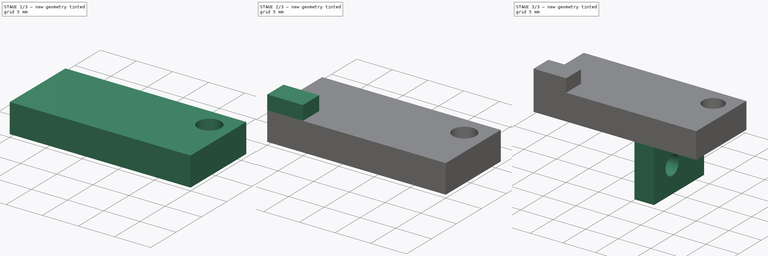
[diagram: build sequence overview — one tinted view per stage of 3, left to right]
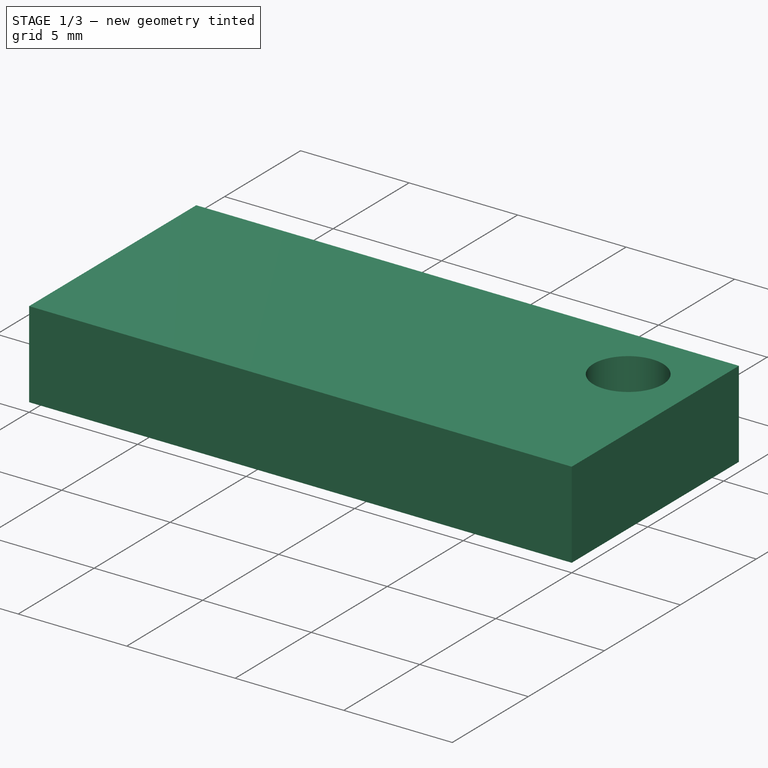
[diagram: stage 1 of 3 — iso view after this stage's code; geometry added in this stage tinted green]
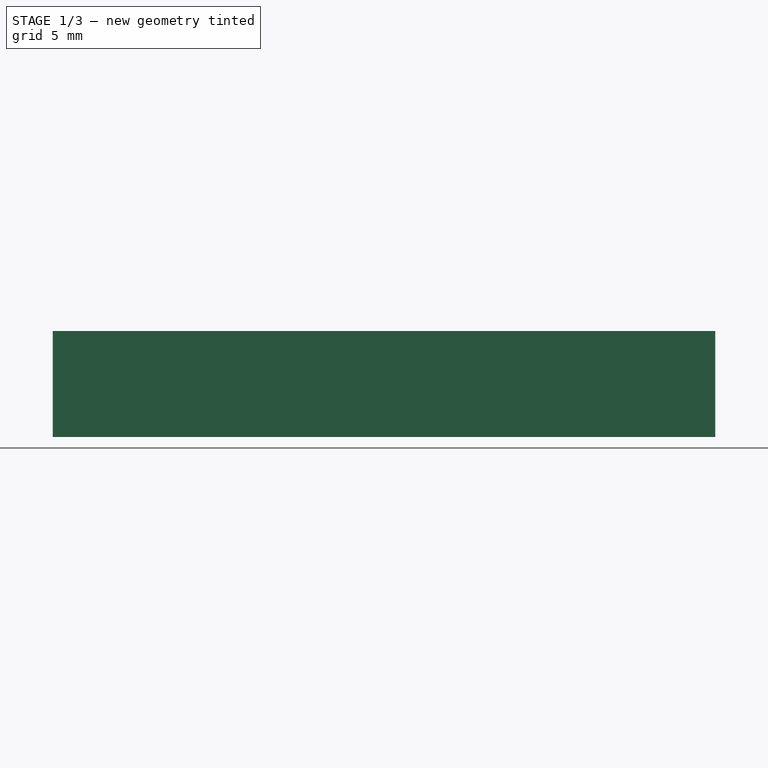
[diagram: stage 1 of 3 — front view after this stage's code; geometry added in this stage tinted green]
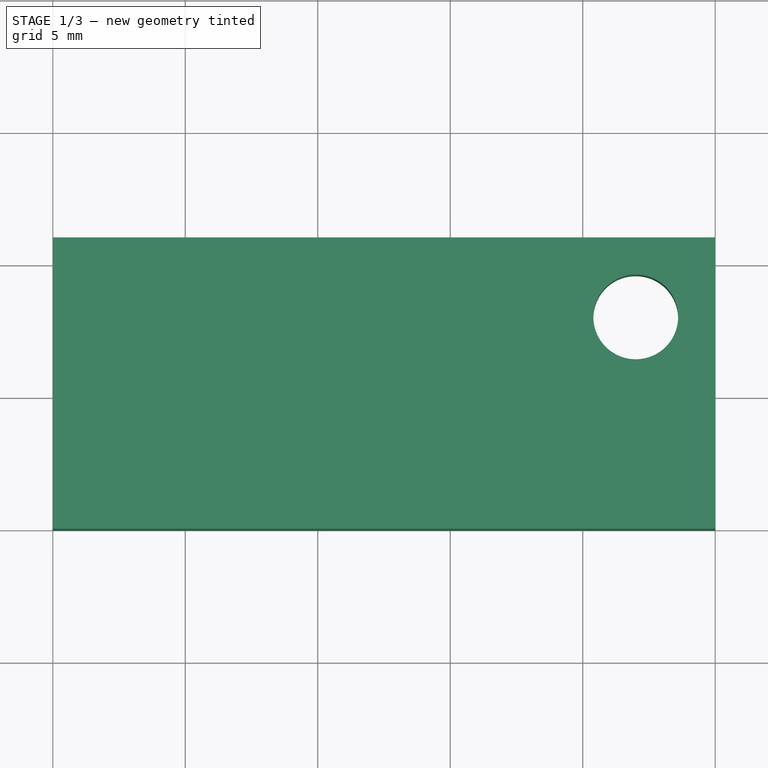
[diagram: stage 1 of 3 — top view after this stage's code; geometry added in this stage tinted green]
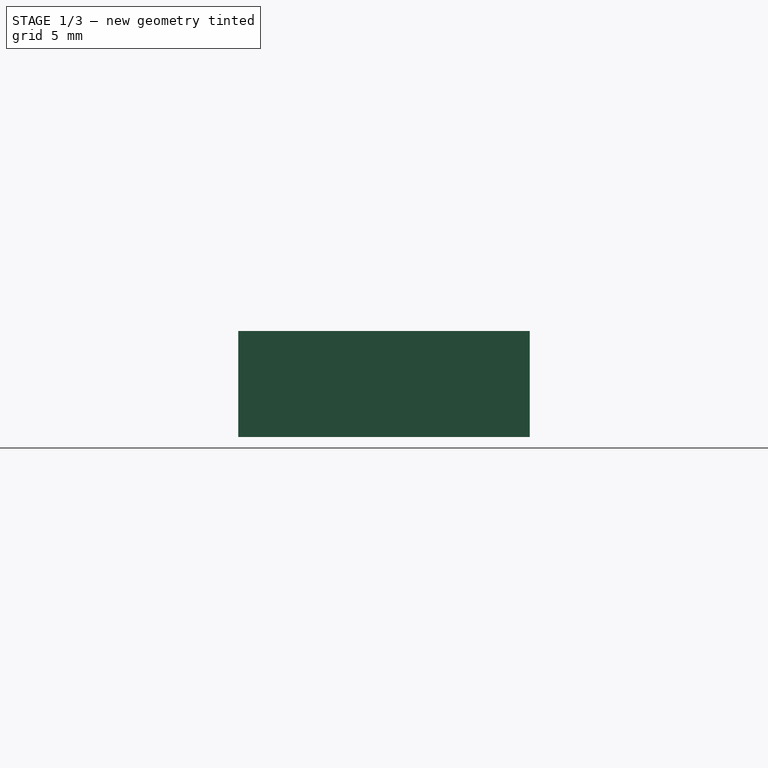
[diagram: stage 1 of 3 — right view after this stage's code; geometry added in this stage tinted green]
FCSTD DOCUMENT  (FreeCAD 0.18R14090 (Git))
Label: ZEndStopClip3
License: All rights reserved
LicenseURL: http://en.wikipedia.org/wiki/All_rights_reserved
objects: Sketcher::SketchObject×5, PartDesign::Pad×3, PartDesign::Pocket×2, PartDesign::Plane×1, PartDesign::Body×1, App::Part×1
note: 17 computed .brp shape members not serialized (recipe doc carries the construction recipe); baked Part::Feature solids carry a one-line shape summary decoded from their .brp

FEATURE [Sketcher::SketchObject] Sketch  label="BaseSketch"
  MapMode = 5
  Support = -> [XY_Plane001]
  sketch-geometry (7):
    g0: LineSegment StartX=0 StartY=0 StartZ=0 EndX=25 EndY=0 EndZ=0
    g1: LineSegment StartX=25 StartY=0 StartZ=0 EndX=25 EndY=11 EndZ=0
    g2: LineSegment StartX=25 StartY=11 StartZ=0 EndX=0 EndY=11 EndZ=0
    g3: LineSegment StartX=0 StartY=11 StartZ=0 EndX=0 EndY=0 EndZ=0
    g4: Circle CenterX=22 CenterY=8 CenterZ=0 NormalX=0 NormalY=0 NormalZ=1 AngleXU=0 Radius=1.6
    g5: LineSegment [constr] StartX=22 StartY=8 StartZ=0 EndX=22 EndY=0 EndZ=0
    g6: LineSegment [constr] StartX=22 StartY=8 StartZ=0 EndX=25 EndY=8 EndZ=0
  constraints (20):
    c: Coincident(g0,g1)
    c: Coincident(g1,g2)
    c: Coincident(g2,g3)
    c: Coincident(g3,g0)
    c: Horizontal(g0)
    c: Horizontal(g2)
    c: Vertical(g1)
    c: Vertical(g3)
    c: Coincident(g0,g-1)
    c: Distance(g3) = 11
    c: Distance(g0) = 25
    c: Coincident(g5,g4)
    c: PointOnObject(g5,g0)
    c: Vertical(g5)
    c: Radius(g4) = 1.6
    c: Coincident(g6,g4)
    c: PointOnObject(g6,g1)
    c: Horizontal(g6)
    c: Distance(g6) = 3
    c: Distance(g5) = 8
FEATURE [PartDesign::Pad] Pad  label="BasePad"
  Length = 4
  Length2 = 100
  Profile = -> Sketch
  Type = 0
FEATURE [Sketcher::SketchObject] Sketch001  label="RailSketch"
  ExternalGeometry = -> [Sketch]
  MapMode = 5
  Placement = pos=(0,0,0) rot=(0.57735,0.57735,0.57735;2.0944rad)
  Support = -> [YZ_Plane001]
  sketch-geometry (10):
    g0: LineSegment StartX=1 StartY=3 StartZ=0 EndX=7 EndY=3 EndZ=0
    g1: LineSegment StartX=1 StartY=3 StartZ=0 EndX=1 EndY=1.5 EndZ=0
    g2: LineSegment StartX=7 StartY=3 StartZ=0 EndX=7 EndY=1.5 EndZ=0
    g3: LineSegment StartX=1 StartY=1.5 StartZ=0 EndX=2 EndY=1.5 EndZ=0
    g4: LineSegment StartX=7 StartY=1.5 StartZ=0 EndX=6 EndY=1.5 EndZ=0
    g5: LineSegment StartX=2 StartY=1.5 StartZ=0 EndX=2 EndY=0 EndZ=0
    g6: LineSegment StartX=2 StartY=0 StartZ=0 EndX=6 EndY=0 EndZ=0
    g7: LineSegment StartX=6 StartY=0 StartZ=0 EndX=6 EndY=1.5 EndZ=0
    g8: LineSegment [constr] StartX=2 StartY=0 StartZ=0 EndX=0 EndY=0 EndZ=0
    g9: LineSegment [constr] StartX=6 StartY=0 StartZ=0 EndX=11 EndY=1e-12 EndZ=0
  constraints (28):
    c: Horizontal(g0)
    c: Coincident(g1,g0)
    c: Vertical(g1)
    c: Coincident(g2,g0)
    c: Vertical(g2)
    c: Coincident(g3,g1)
    c: Horizontal(g3)
    c: Coincident(g4,g2)
    c: Horizontal(g4)
    c: Coincident(g5,g3)
    c: PointOnObject(g5,g-1)
    c: Vertical(g5)
    c: Coincident(g6,g5)
    c: PointOnObject(g6,g-1)
    c: Coincident(g7,g6)
    c: Coincident(g7,g4)
    c: Vertical(g7)
    c: Equal(g7,g5)
    c: Equal(g4,g3)
    c: Coincident(g8,g5)
    c: Coincident(g8,g-1)
    c: Coincident(g9,g6)
    c: Coincident(g9,g-3)
    c: Distance(g6) = 4
    c: Distance(g5) = 1.5
    c: Distance(g1) = 1.5
    c: Distance(g4) = 1
    c: Distance(g8) = 2
FEATURE [PartDesign::Pocket] Pocket  label="RailPocket"
  BaseFeature = -> Pad
  Length = 18
  Length2 = 100
  Profile = -> Sketch001
  Reversed = true
  Type = 0
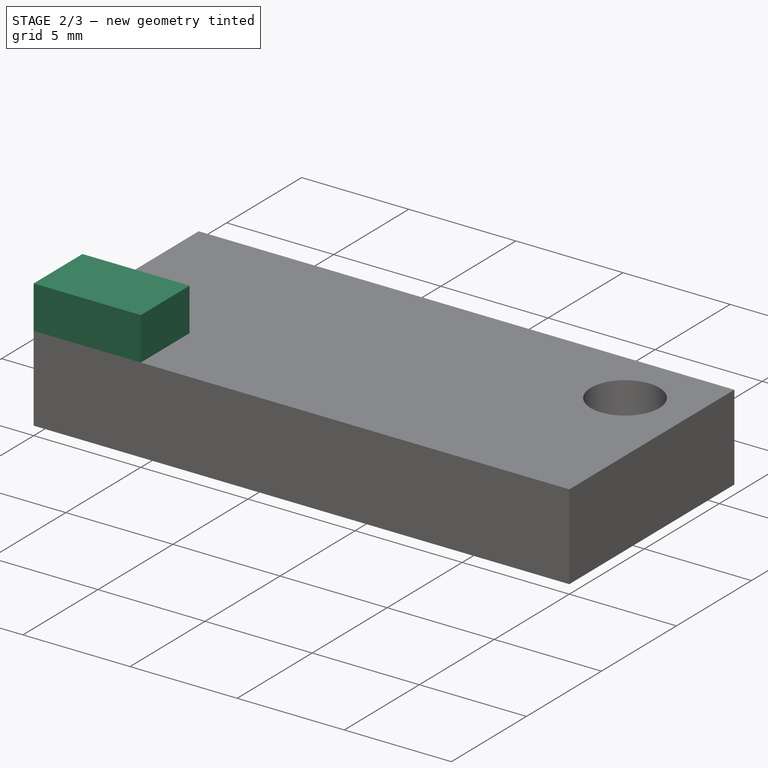
[diagram: stage 2 of 3 — iso view after this stage's code; geometry added in this stage tinted green]
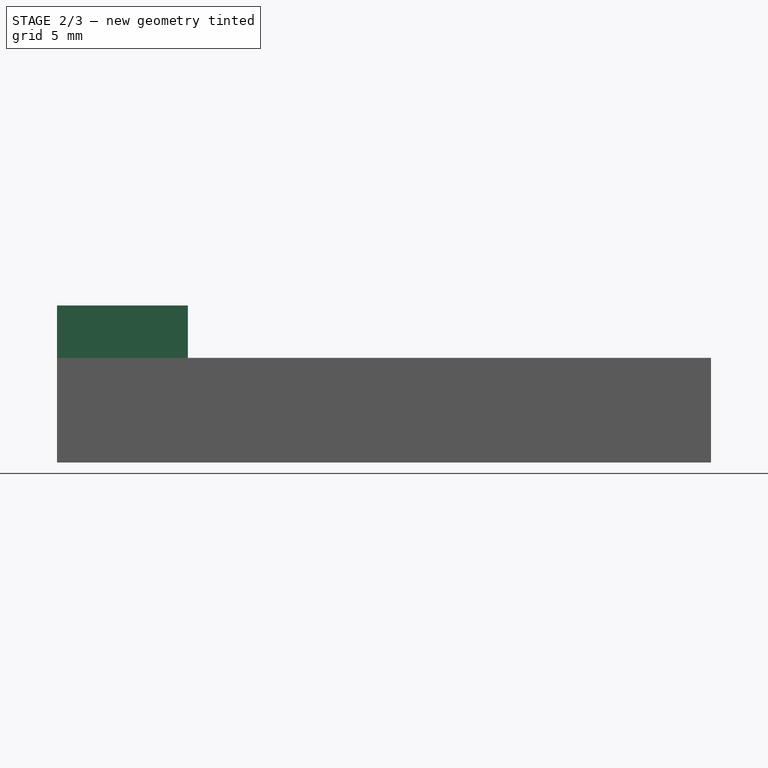
[diagram: stage 2 of 3 — front view after this stage's code; geometry added in this stage tinted green]
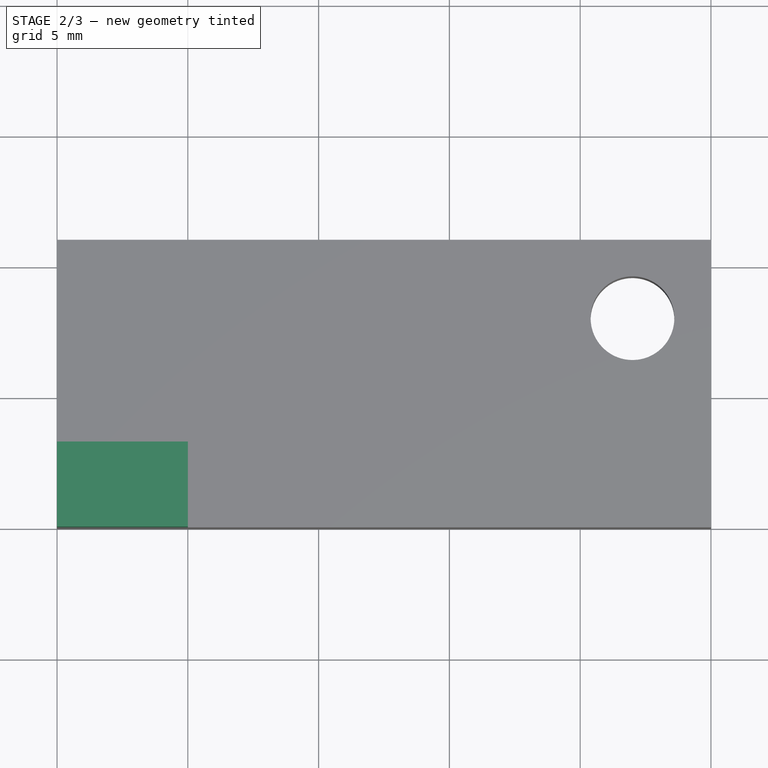
[diagram: stage 2 of 3 — top view after this stage's code; geometry added in this stage tinted green]
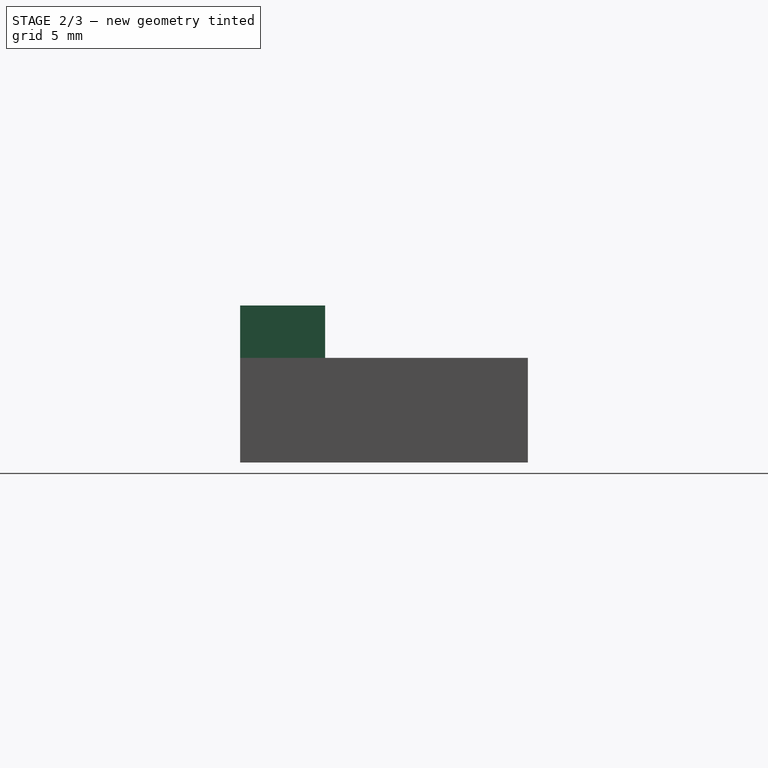
[diagram: stage 2 of 3 — right view after this stage's code; geometry added in this stage tinted green]
FEATURE [PartDesign::Plane] DatumPlane  label="TopPlane"
  AttachmentOffset = pos=(0,0,4) rot=(0,0,1;0rad)
  MapMode = 5
  Placement = pos=(0,0,4) rot=(0,0,1;0rad)
  Support = -> [XY_Plane001]
FEATURE [Sketcher::SketchObject] Sketch002  label="ClampSketch"
  ExternalGeometry = -> [Sketch]
  MapMode = 5
  Placement = pos=(0,0,4) rot=(0,0,1;0rad)
  Support = -> [DatumPlane]
  sketch-geometry (6):
    g0: LineSegment StartX=0 StartY=0 StartZ=0 EndX=5 EndY=0 EndZ=0
    g1: LineSegment StartX=5 StartY=0 StartZ=0 EndX=5 EndY=3.25 EndZ=0
    g2: LineSegment StartX=5 StartY=3.25 StartZ=0 EndX=0 EndY=3.25 EndZ=0
    g3: LineSegment StartX=0 StartY=3.25 StartZ=0 EndX=0 EndY=0 EndZ=0
    g4: LineSegment [constr] StartX=22 StartY=8 StartZ=0 EndX=22 EndY=3.25 EndZ=0
    g5: LineSegment [constr] StartX=5 StartY=3.25 StartZ=0 EndX=22 EndY=3.25 EndZ=0
  constraints (17):
    c: Coincident(g0,g1)
    c: Coincident(g1,g2)
    c: Coincident(g2,g3)
    c: Coincident(g3,g0)
    c: Horizontal(g0)
    c: Horizontal(g2)
    c: Vertical(g1)
    c: Vertical(g3)
    c: PointOnObject(g0,g-2)
    c: Distance(g2) = 5
    c: Coincident(g4,g-3)
    c: Vertical(g4)
    c: Distance(g4) = 4.75
    c: Coincident(g5,g1)
    c: Coincident(g5,g4)
    c: Horizontal(g5)
    c: PointOnObject(g0,g-1)
FEATURE [PartDesign::Pad] Pad001  label="ClampPad"
  BaseFeature = -> Pocket
  Length = 2
  Length2 = 100
  Profile = -> Sketch002
  Type = 0
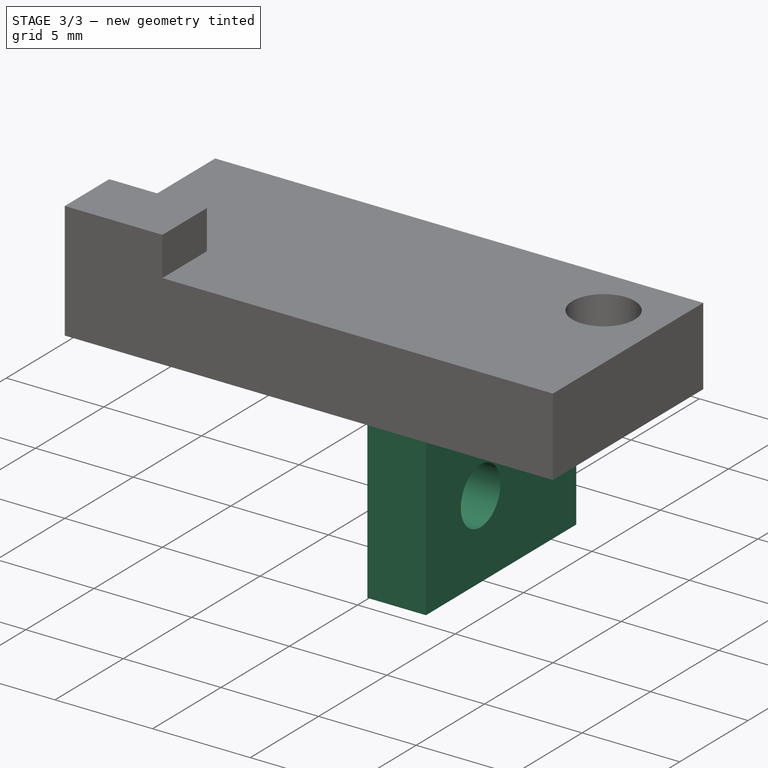
[diagram: stage 3 of 3 — iso view after this stage's code; geometry added in this stage tinted green]
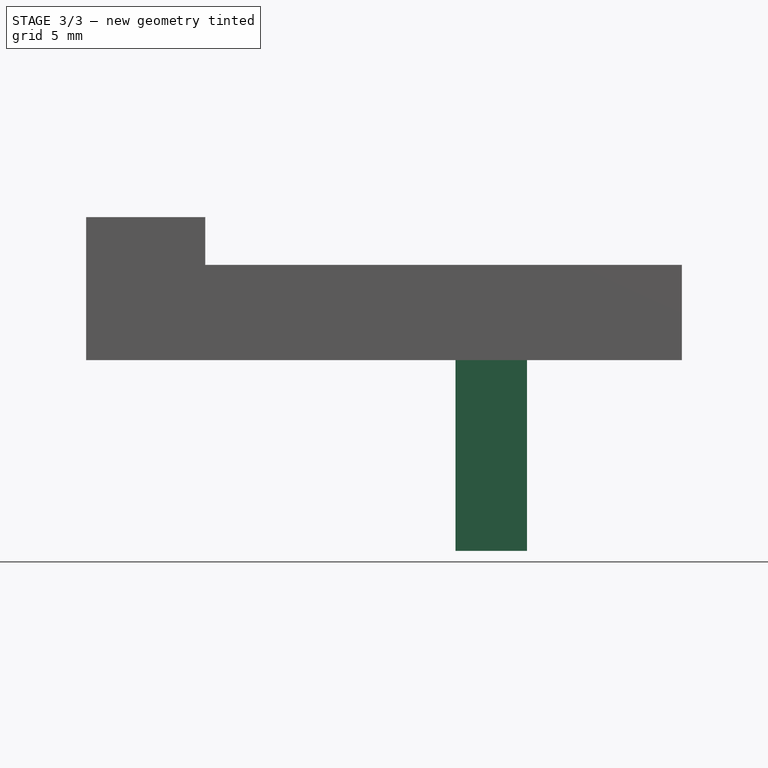
[diagram: stage 3 of 3 — front view after this stage's code; geometry added in this stage tinted green]
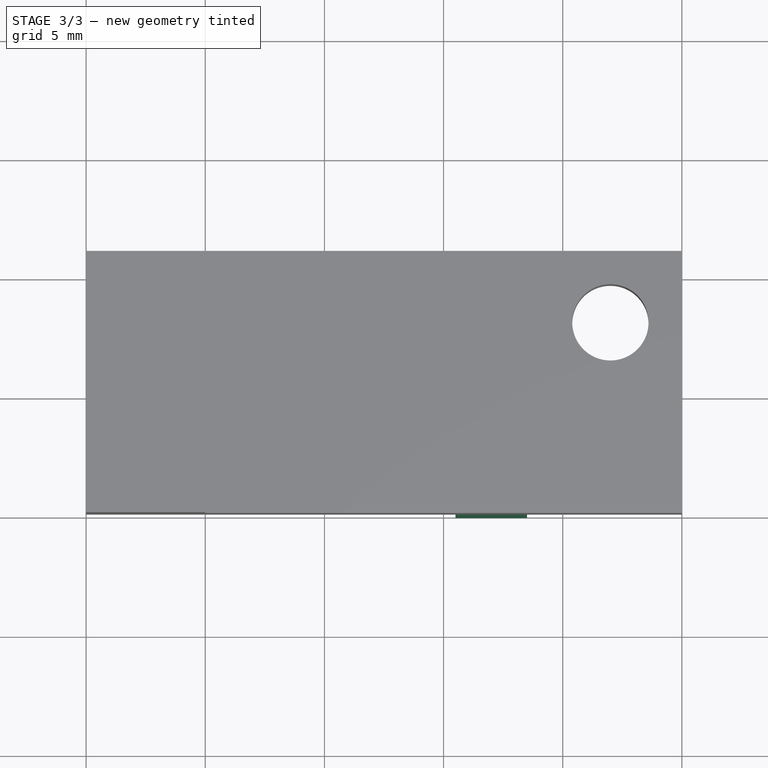
[diagram: stage 3 of 3 — top view after this stage's code; geometry added in this stage tinted green]
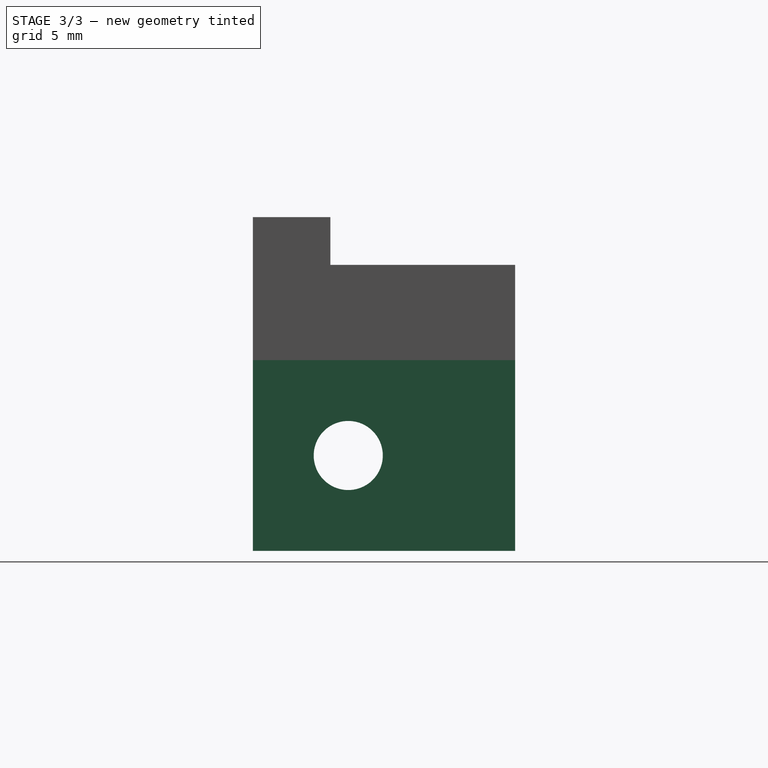
[diagram: stage 3 of 3 — right view after this stage's code; geometry added in this stage tinted green]
FEATURE [Sketcher::SketchObject] Sketch003  label="TuneClampSketch"
  ExternalGeometry = -> [Sketch]
  MapMode = 5
  Support = -> [XY_Plane001]
  sketch-geometry (4):
    g0: LineSegment StartX=18.5 StartY=0 StartZ=0 EndX=15.5 EndY=0 EndZ=0
    g1: LineSegment StartX=15.5 StartY=0 StartZ=0 EndX=15.5 EndY=11 EndZ=0
    g2: LineSegment StartX=15.5 StartY=11 StartZ=0 EndX=18.5 EndY=11 EndZ=0
    g3: LineSegment StartX=18.5 StartY=11 StartZ=0 EndX=18.5 EndY=0 EndZ=0
  constraints (12):
    c: Coincident(g0,g1)
    c: Coincident(g1,g2)
    c: Coincident(g2,g3)
    c: Coincident(g3,g0)
    c: Horizontal(g0)
    c: Horizontal(g2)
    c: Vertical(g1)
    c: Vertical(g3)
    c: PointOnObject(g0,g-1)
    c: Distance(g2,g-3) = 6.5
    c: PointOnObject(g2,g-4)
    c: Distance(g2) = 3
FEATURE [PartDesign::Pad] Pad002  label="TuneClampPad"
  BaseFeature = -> Pad001
  Length = 4
  Length2 = 8
  Profile = -> Sketch003
  Type = 4
FEATURE [Sketcher::SketchObject] Sketch004  label="TuneScrewSketch"
  ExternalGeometry = -> [Sketch001,Pad002]
  MapMode = 5
  Placement = pos=(0,0,0) rot=(0.57735,0.57735,0.57735;2.0944rad)
  Support = -> [YZ_Plane001]
  sketch-geometry (5):
    g0: LineSegment [constr] StartX=4 StartY=-8 StartZ=0 EndX=4 EndY=-4 EndZ=0
    g1: LineSegment [constr] StartX=4 StartY=-4 StartZ=0 EndX=4 EndY=0 EndZ=0
    g2: LineSegment [constr] StartX=4 StartY=0 StartZ=0 EndX=1 EndY=3 EndZ=0
    g3: LineSegment [constr] StartX=4 StartY=0 StartZ=0 EndX=7 EndY=3 EndZ=0
    g4: Circle CenterX=4 CenterY=-4 CenterZ=0 NormalX=0 NormalY=0 NormalZ=1 AngleXU=0 Radius=1.45
  constraints (13):
    c: PointOnObject(g0,g-4)
    c: Vertical(g0)
    c: Coincident(g1,g0)
    c: PointOnObject(g1,g-1)
    c: Vertical(g1)
    c: Coincident(g2,g1)
    c: Coincident(g2,g-3)
    c: Coincident(g3,g1)
    c: Coincident(g3,g-3)
    c: Equal(g2,g3)
    c: Equal(g1,g0)
    c: Coincident(g4,g0)
    c: Radius(g4) = 1.45
FEATURE [PartDesign::Pocket] Pocket001  label="TuneScrewPocket"
  BaseFeature = -> Pad002
  Length = 5
  Length2 = 100
  Profile = -> Sketch004
  Reversed = true
  Type = 1
FEATURE [PartDesign::Body] Body  label="ClipBody"
  Group = -> [Sketch,Pad,Sketch001,Pocket,DatumPlane,Sketch002,Pad001,Sketch003,Pad002,Sketch004,Pocket001]
  Origin = -> Origin001
  Tip = -> Pocket001
FEATURE [App::Part] Part  label="ZEndStopClip3Part"
  Group = -> [Body]
  License = CC BY 3.0
  LicenseURL = http://creativecommons.org/licenses/by/3.0/
  Origin = -> Origin
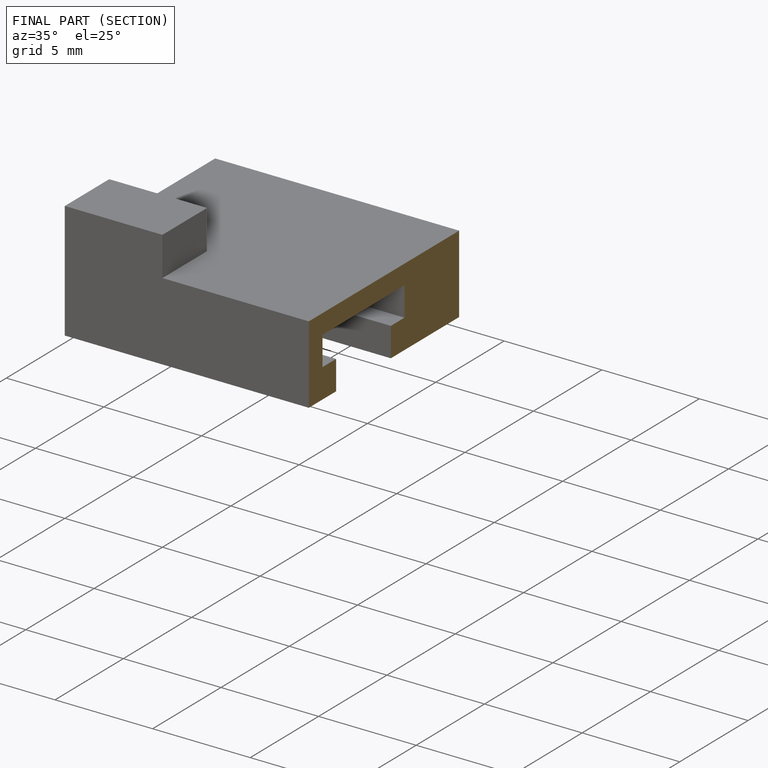
[diagram: finished part — half-section view (interior)]
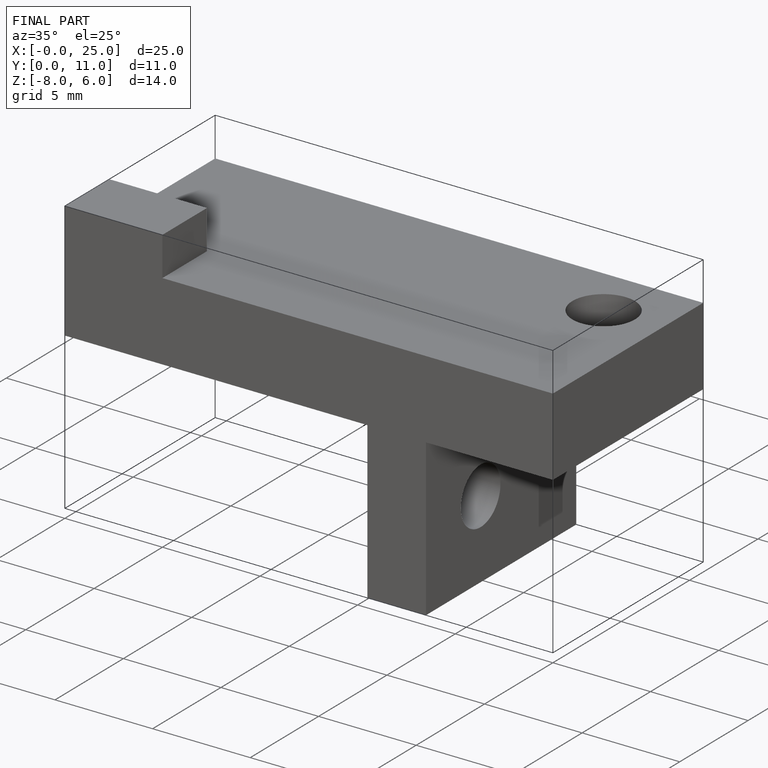
[diagram: finished part — iso view with bounding-box wireframe]
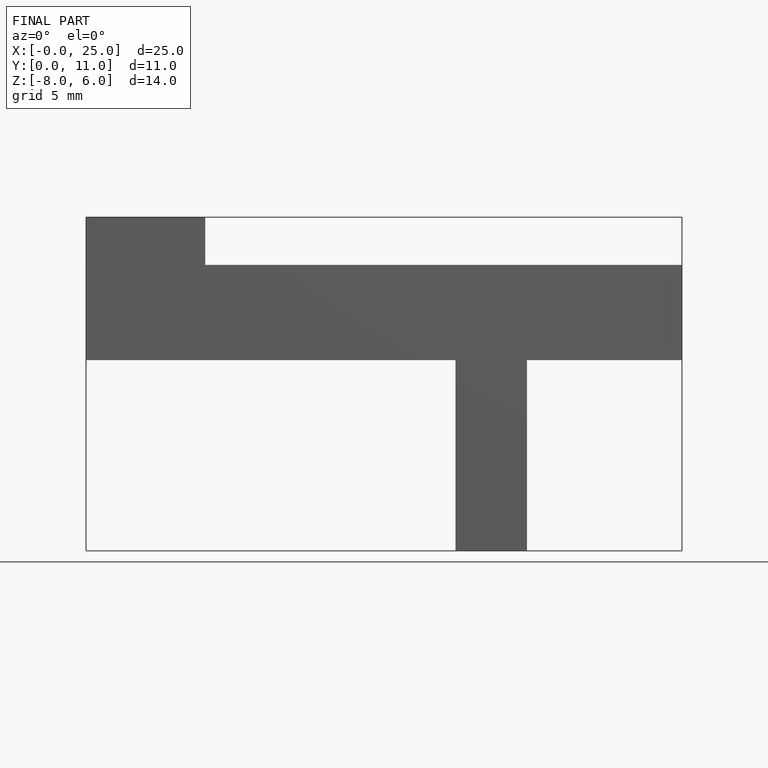
[diagram: finished part — front view with bounding-box wireframe]
